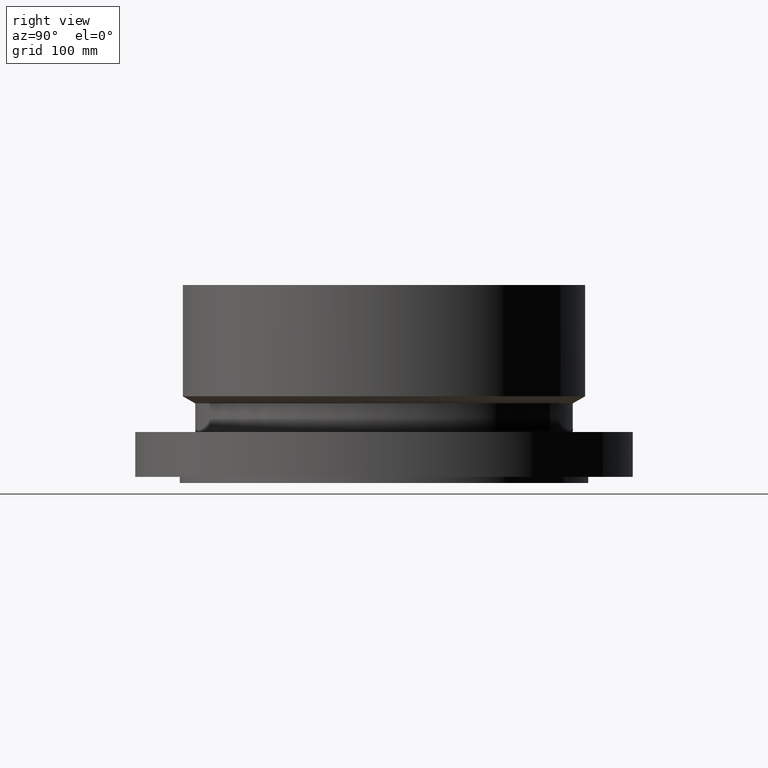
[diagram: clean part render]
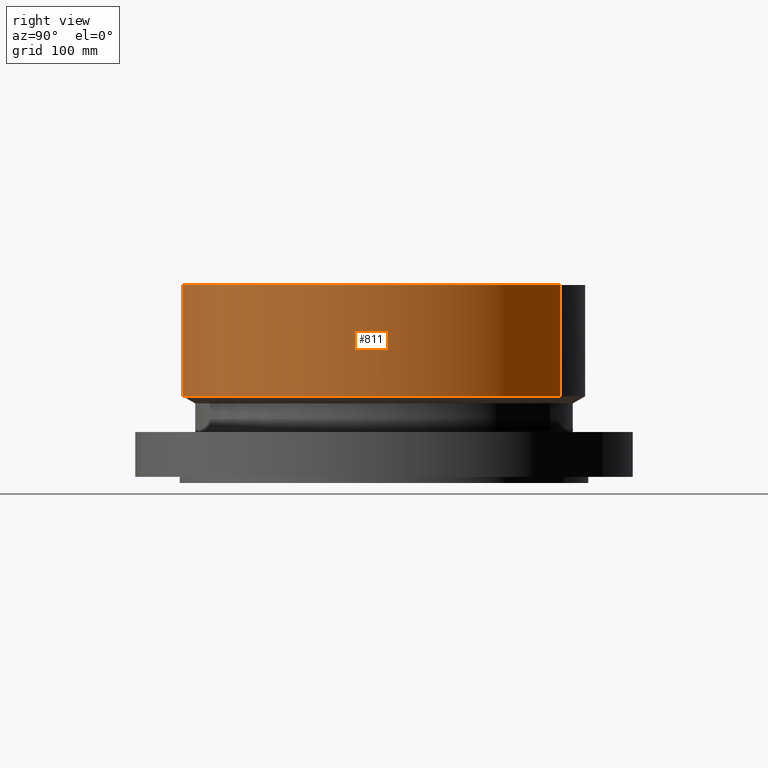
[diagram: same view with one face highlighted and labeled with its STEP entity id]
A machine part, right view. The second image highlights one B-rep face of the part: STEP entity #811.
In plain terms, the highlighted cylindrical surface (partial cylindrical patch) has radius 312.801 mm, axis along (0, 0, -1).
Its self-contained STEP definition (entity closure, byte-faithful):
#752=AXIS2_PLACEMENT_3D('Circle Axis2P3D',#750,#751,$) ;
#784=AXIS2_PLACEMENT_3D('Cylinder Axis2P3D',#781,#782,#783) ;
#795=AXIS2_PLACEMENT_3D('Circle Axis2P3D',#793,#794,$) ;
#747=CARTESIAN_POINT('Vertex',(5.90412550793,10.8074292497,4.93589945326)) ;
#750=CARTESIAN_POINT('Axis2P3D Location',(0.,0.,4.93589945326)) ;
#754=CARTESIAN_POINT('Vertex',(-5.90412550793,-10.8074292497,4.93589945326)) ;
#781=CARTESIAN_POINT('Axis2P3D Location',(0.,0.,5.68750000002)) ;
#786=CARTESIAN_POINT('Line Origine',(5.90412550793,10.8074292497,8.34294972665)) ;
#790=CARTESIAN_POINT('Vertex',(5.90412550793,10.8074292497,11.75)) ;
#793=CARTESIAN_POINT('Axis2P3D Location',(0.,0.,11.75)) ;
#797=CARTESIAN_POINT('Vertex',(-5.90412550793,-10.8074292497,11.75)) ;
#800=CARTESIAN_POINT('Line Origine',(-5.90412550793,-10.8074292497,8.34294972665)) ;
#751=DIRECTION('Axis2P3D Direction',(-0.,0.,0.0393700787402)) ;
#782=DIRECTION('Axis2P3D Direction',(0.,0.,-0.0393700787402)) ;
#783=DIRECTION('Axis2P3D XDirection',(-0.0188750212049,-0.0345504945626,0.)) ;
#787=DIRECTION('Vector Direction',(0.,0.,-0.0393700787402)) ;
#794=DIRECTION('Axis2P3D Direction',(0.,0.,-0.0393700787402)) ;
#801=DIRECTION('Vector Direction',(0.,0.,-0.0393700787402)) ;
#788=VECTOR('Line Direction',#787,0.0393700787402) ;
#802=VECTOR('Line Direction',#801,0.0393700787402) ;
#806=ORIENTED_EDGE('',*,*,#756,.F.) ;
#807=ORIENTED_EDGE('',*,*,#792,.T.) ;
#808=ORIENTED_EDGE('',*,*,#799,.T.) ;
#809=ORIENTED_EDGE('',*,*,#804,.F.) ;
#811=ADVANCED_FACE('PartBody',(#810),#785,.T.) ;
#753=CIRCLE('generated circle',#752,12.315) ;
#796=CIRCLE('generated circle',#795,12.315) ;
#785=CYLINDRICAL_SURFACE('generated cylinder',#784,12.315) ;
#756=EDGE_CURVE('',#748,#755,#753,.F.) ;
#792=EDGE_CURVE('',#748,#791,#789,.F.) ;
#799=EDGE_CURVE('',#791,#798,#796,.T.) ;
#804=EDGE_CURVE('',#755,#798,#803,.F.) ;
#805=EDGE_LOOP('',(#806,#807,#808,#809)) ;
#810=FACE_OUTER_BOUND('',#805,.T.) ;
#789=LINE('Line',#786,#788) ;
#803=LINE('Line',#800,#802) ;
#748=VERTEX_POINT('',#747) ;
#755=VERTEX_POINT('',#754) ;
#791=VERTEX_POINT('',#790) ;
#798=VERTEX_POINT('',#797) ;